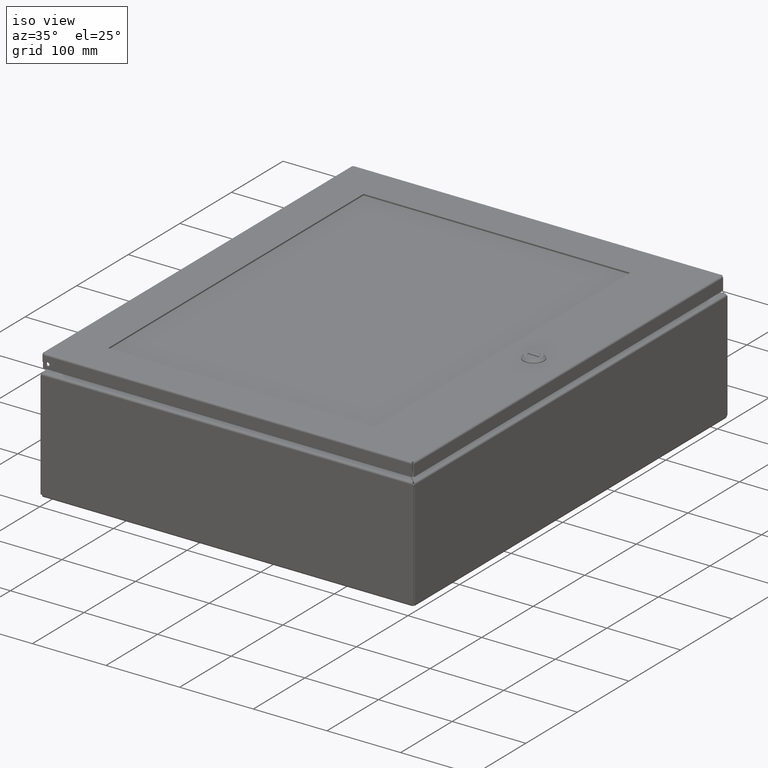
[diagram: clean part render]
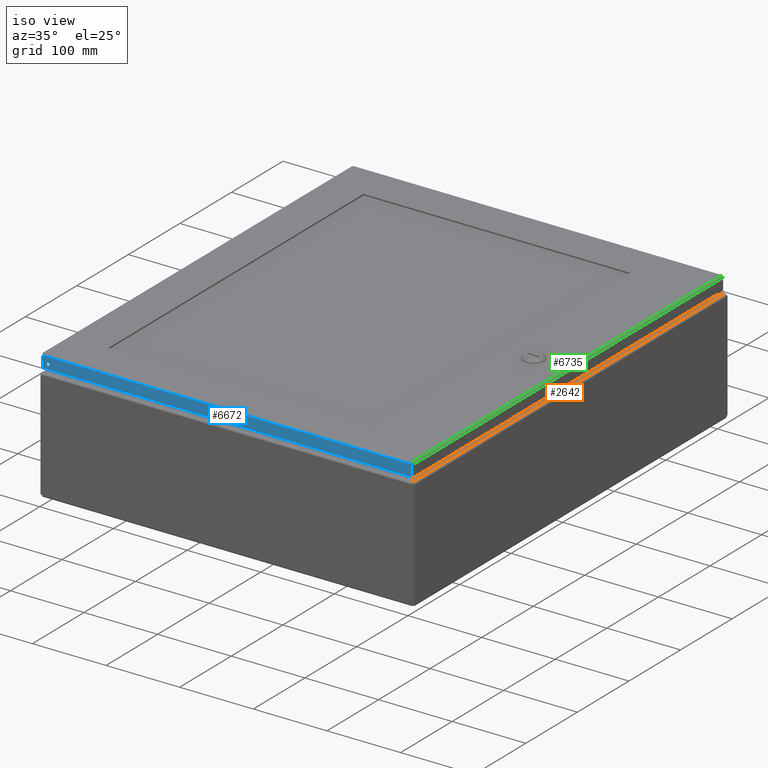
[diagram: same view with three faces highlighted in distinct colors, each labeled with its STEP entity id]
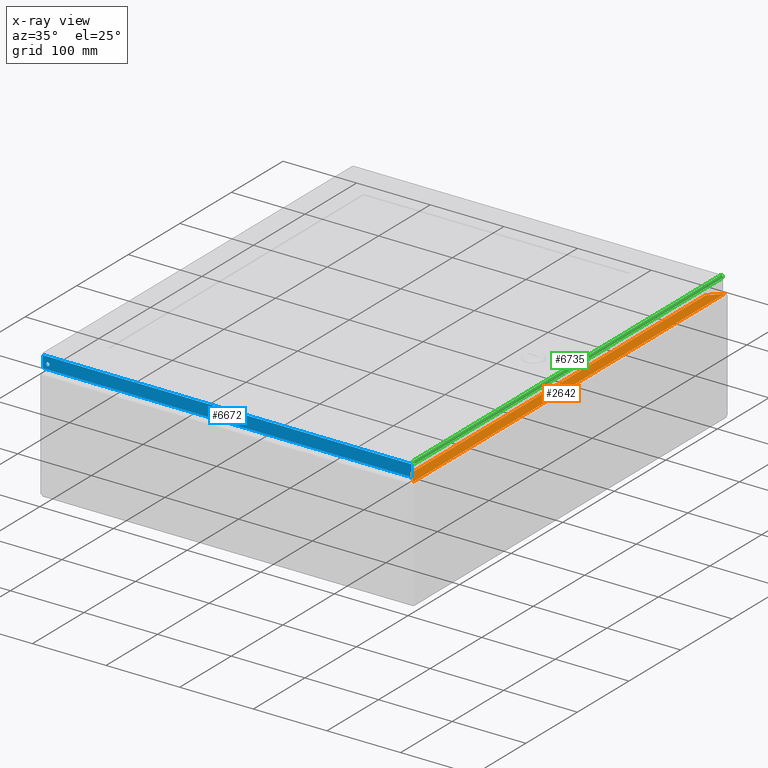
[diagram: x-ray of the same camera — body ghosted, the three highlighted faces saturated]
A machine part, iso view with three faces highlighted in distinct colors.
The next image is the same camera in x-ray (body ghosted, the three faces saturated) — at least one of them is partly hidden behind the body in this view.
Their STEP definitions:

[orange] entity #2642 — the highlighted planar face has unit normal (0, 0, 1).
#1823=CARTESIAN_POINT('',(19.292749999999998,0.718298543456033,5.999999999999988));
#1824=VERTEX_POINT('',#1823);
#1871=CARTESIAN_POINT('',(19.292749999999987,23.281701456543665,5.999999999999990));
#1872=VERTEX_POINT('',#1871);
#1897=CARTESIAN_POINT('',(19.292749999999987,23.281701456543665,5.999999999999983));
#1898=DIRECTION('',(0.0,-1.0,0.0));
#1899=VECTOR('',#1898,22.563402913087632);
#1900=LINE('',#1897,#1899);
#1901=EDGE_CURVE('',#1872,#1824,#1900,.T.);
#2479=CARTESIAN_POINT('',(19.894749999999988,23.883701456543665,6.000000000000010));
#2480=VERTEX_POINT('',#2479);
#2481=CARTESIAN_POINT('',(19.292749999999984,23.281701456543665,5.999999999999982));
#2482=DIRECTION('',(0.707106781186548,0.707106781186548,2.503802E-014));
#2483=VECTOR('',#2482,0.851356564548604);
#2484=LINE('',#2481,#2483);
#2485=EDGE_CURVE('',#1872,#2480,#2484,.T.);
#2619=CARTESIAN_POINT('',(19.584848115756330,11.999999999999998,5.999999999999993));
#2620=DIRECTION('',(0.0,0.0,1.0));
#2621=DIRECTION('',(1.0,0.0,0.0));
#2622=AXIS2_PLACEMENT_3D('',#2619,#2620,#2621);
#2623=PLANE('',#2622);
#2624=ORIENTED_EDGE('',*,*,#1901,.T.);
#2625=CARTESIAN_POINT('',(19.894749999999995,0.116298543456039,6.000000000000007));
#2626=VERTEX_POINT('',#2625);
#2627=CARTESIAN_POINT('',(19.894749999999995,0.116298543456040,6.000000000000005));
#2628=DIRECTION('',(-0.707106781186547,0.707106781186548,-2.399477E-014));
#2629=VECTOR('',#2628,0.851356564548594);
#2630=LINE('',#2627,#2629);
#2631=EDGE_CURVE('',#2626,#1824,#2630,.T.);
#2632=ORIENTED_EDGE('',*,*,#2631,.F.);
#2633=CARTESIAN_POINT('',(19.894749999999998,0.116298543456038,6.000000000000004));
#2634=DIRECTION('',(0.0,1.0,0.0));
#2635=VECTOR('',#2634,23.767402913087622);
#2636=LINE('',#2633,#2635);
#2637=EDGE_CURVE('',#2626,#2480,#2636,.T.);
#2638=ORIENTED_EDGE('',*,*,#2637,.T.);
#2639=ORIENTED_EDGE('',*,*,#2485,.F.);
#2640=EDGE_LOOP('',(#2624,#2632,#2638,#2639));
#2641=FACE_OUTER_BOUND('',#2640,.T.);
#2642=ADVANCED_FACE('',(#2641),#2623,.T.);

[blue] entity #6672 — the highlighted planar face has unit normal (-0, 1, 0).
#6240=CARTESIAN_POINT('',(19.633951456543965,2.819556E-015,0.479999999999991));
#6241=VERTEX_POINT('',#6240);
#6242=CARTESIAN_POINT('',(19.539951456543967,2.797412E-015,0.479999999999991));
#6243=DIRECTION('',(0.0,1.0,0.0));
#6244=DIRECTION('',(-1.0,0.0,0.0));
#6245=AXIS2_PLACEMENT_3D('',#6242,#6243,#6244);
#6246=CIRCLE('',#6245,0.094000000000000);
#6247=EDGE_CURVE('',#6241,#6241,#6246,.T.);
#6418=CARTESIAN_POINT('',(0.085048543456039,-1.244561E-015,0.105250000000000));
#6419=VERTEX_POINT('',#6418);
#6420=CARTESIAN_POINT('',(19.789951456543964,-1.244561E-015,0.105249999999999));
#6421=VERTEX_POINT('',#6420);
#6422=CARTESIAN_POINT('',(0.085048543456040,-1.245029E-015,0.105250000000000));
#6423=DIRECTION('',(1.0,0.0,0.0));
#6424=VECTOR('',#6423,19.704902913087924);
#6425=LINE('',#6422,#6424);
#6426=EDGE_CURVE('',#6419,#6421,#6425,.T.);
#6507=CARTESIAN_POINT('',(19.789951456543964,-1.282815E-015,0.729999999999999));
#6508=VERTEX_POINT('',#6507);
#6509=CARTESIAN_POINT('',(19.789951456543964,-1.293742E-015,0.729999999999999));
#6510=DIRECTION('',(0.0,0.0,-1.0));
#6511=VECTOR('',#6510,0.624750000000000);
#6512=LINE('',#6509,#6511);
#6513=EDGE_CURVE('',#6508,#6421,#6512,.T.);
#6622=CARTESIAN_POINT('',(0.085048543456038,-1.282815E-015,0.730000000000000));
#6623=VERTEX_POINT('',#6622);
#6624=CARTESIAN_POINT('',(0.085048543456038,-1.255489E-015,0.105250000000000));
#6625=DIRECTION('',(0.0,0.0,1.0));
#6626=VECTOR('',#6625,0.624750000000000);
#6627=LINE('',#6624,#6626);
#6628=EDGE_CURVE('',#6419,#6623,#6627,.T.);
#6646=CARTESIAN_POINT('',(0.085048543456038,-1.293742E-015,0.730000000000000));
#6647=DIRECTION('',(1.0,0.0,0.0));
#6648=VECTOR('',#6647,19.704902913087924);
#6649=LINE('',#6646,#6648);
#6650=EDGE_CURVE('',#6623,#6508,#6649,.T.);
#6658=CARTESIAN_POINT('',(9.937499999999996,-1.261066E-015,0.374799436818948));
#6659=DIRECTION('',(0.0,1.0,0.0));
#6660=DIRECTION('',(1.0,0.0,0.0));
#6661=AXIS2_PLACEMENT_3D('',#6658,#6659,#6660);
#6662=PLANE('',#6661);
#6663=ORIENTED_EDGE('',*,*,#6426,.T.);
#6664=ORIENTED_EDGE('',*,*,#6513,.F.);
#6665=ORIENTED_EDGE('',*,*,#6650,.F.);
#6666=ORIENTED_EDGE('',*,*,#6628,.F.);
#6667=EDGE_LOOP('',(#6663,#6664,#6665,#6666));
#6668=FACE_OUTER_BOUND('',#6667,.T.);
#6669=ORIENTED_EDGE('',*,*,#6247,.T.);
#6670=EDGE_LOOP('',(#6669));
#6671=FACE_BOUND('',#6670,.T.);
#6672=ADVANCED_FACE('',(#6668,#6671),#6662,.F.);

[green] entity #6735 — the highlighted cylindrical surface (edge-blend (fillet) strip) has radius 2.6734 mm, axis along (-0, 1, 0).
#6428=CARTESIAN_POINT('',(0.105249999999999,0.105250000000000,-3.278218E-017));
#6429=VERTEX_POINT('',#6428);
#6690=CARTESIAN_POINT('',(0.105249999999992,23.664951456543967,0.105250000000000));
#6691=DIRECTION('',(-3.061617E-016,1.0,0.0));
#6692=DIRECTION('',(-1.0,0.0,1.266643E-013));
#6693=AXIS2_PLACEMENT_3D('',#6690,#6691,#6692);
#6694=CYLINDRICAL_SURFACE('',#6693,0.105250000000000);
#6695=CARTESIAN_POINT('',(-7.648454E-015,23.664951456543967,0.105250000000007));
#6696=VERTEX_POINT('',#6695);
#6697=CARTESIAN_POINT('',(-4.729004E-016,0.085048543456038,0.105250000000001));
#6698=VERTEX_POINT('',#6697);
#6699=CARTESIAN_POINT('',(-7.652548E-015,23.664951456543967,0.105250000000000));
#6700=DIRECTION('',(0.0,-1.0,0.0));
#6701=VECTOR('',#6700,23.579902913087928);
#6702=LINE('',#6699,#6701);
#6703=EDGE_CURVE('',#6696,#6698,#6702,.T.);
#6704=ORIENTED_EDGE('',*,*,#6703,.F.);
#6705=CARTESIAN_POINT('',(0.105249999999990,23.644750000000005,-2.185478E-017));
#6706=VERTEX_POINT('',#6705);
#6707=CARTESIAN_POINT('',(0.105249999999979,23.644750000000009,4.425594E-016));
#6708=CARTESIAN_POINT('',(0.073759273638996,23.648597896484571,4.243471E-015));
#6709=CARTESIAN_POINT('',(0.042621282980434,23.652445792969136,0.015117000623294));
#6710=CARTESIAN_POINT('',(0.022984906580145,23.656293689453697,0.039612761425444));
#6711=CARTESIAN_POINT('',(0.008257624279928,23.659179611817123,0.057984582027056));
#6712=CARTESIAN_POINT('',(-1.063695E-014,23.662065534180545,0.081631955229276));
#6713=CARTESIAN_POINT('',(-7.671029E-015,23.664951456543967,0.105250000000013));
#6714=B_SPLINE_CURVE_WITH_KNOTS('',3,(#6707,#6708,#6709,#6710,#6711,#6712,#6713),.UNSPECIFIED.,.F.,.U.,(4,3,4),(0.0,0.897597901025658,1.570796326794902),.UNSPECIFIED.);
#6715=EDGE_CURVE('',#6706,#6696,#6714,.T.);
#6716=ORIENTED_EDGE('',*,*,#6715,.F.);
#6717=CARTESIAN_POINT('',(0.105249999999999,0.105250000000000,0.0));
#6718=DIRECTION('',(0.0,1.0,0.0));
#6719=VECTOR('',#6718,23.539500000000004);
#6720=LINE('',#6717,#6719);
#6721=EDGE_CURVE('',#6429,#6706,#6720,.T.);
#6722=ORIENTED_EDGE('',*,*,#6721,.F.);
#6723=CARTESIAN_POINT('',(-4.808052E-016,0.085048543456039,0.105250000000002));
#6724=CARTESIAN_POINT('',(-1.038552E-015,0.087934465819462,0.081631955229265));
#6725=CARTESIAN_POINT('',(0.008248420866584,0.090820388182885,0.057976911614463));
#6726=CARTESIAN_POINT('',(0.022974388393467,0.093706310546308,0.039603995239626));
#6727=CARTESIAN_POINT('',(0.042609011762643,0.097554207030872,0.015106773406511));
#6728=CARTESIAN_POINT('',(0.073759273639015,0.101402103515436,4.207046E-016));
#6729=CARTESIAN_POINT('',(0.105249999999999,0.105250000000000,4.152409E-016));
#6730=B_SPLINE_CURVE_WITH_KNOTS('',3,(#6723,#6724,#6725,#6726,#6727,#6728,#6729),.UNSPECIFIED.,.F.,.U.,(4,3,4),(0.0,0.673198425769251,1.570796326794920),.UNSPECIFIED.);
#6731=EDGE_CURVE('',#6698,#6429,#6730,.T.);
#6732=ORIENTED_EDGE('',*,*,#6731,.F.);
#6733=EDGE_LOOP('',(#6704,#6716,#6722,#6732));
#6734=FACE_OUTER_BOUND('',#6733,.T.);
#6735=ADVANCED_FACE('',(#6734),#6694,.T.);